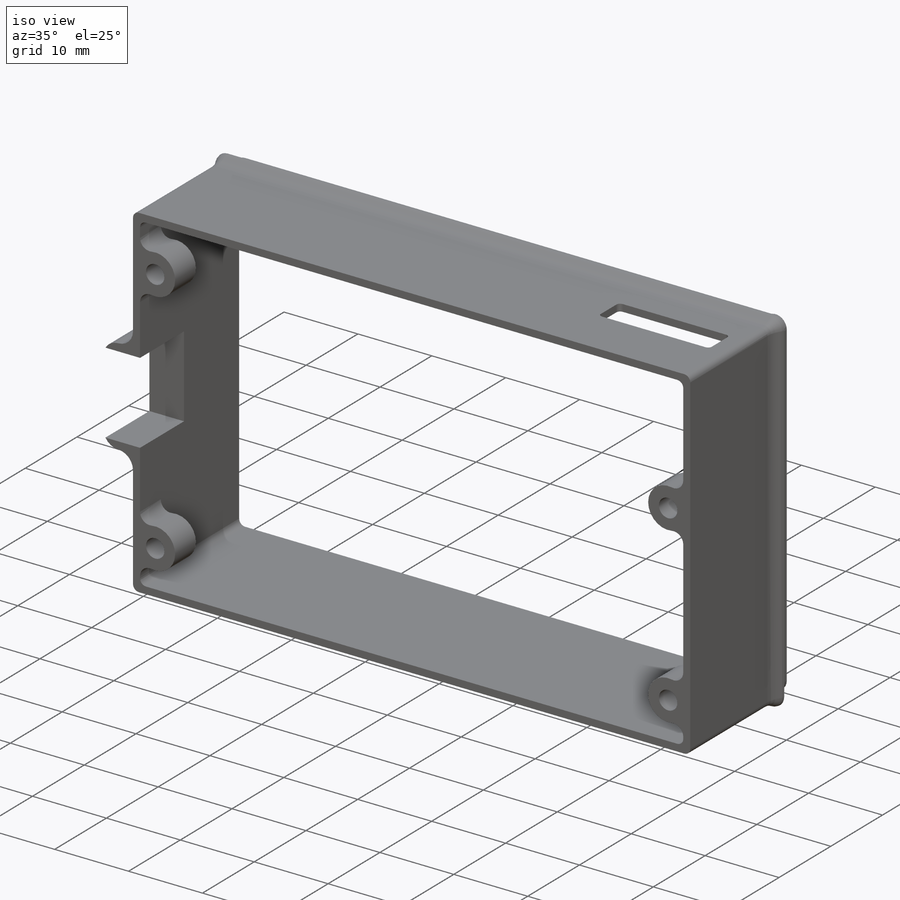
[diagram: iso view]
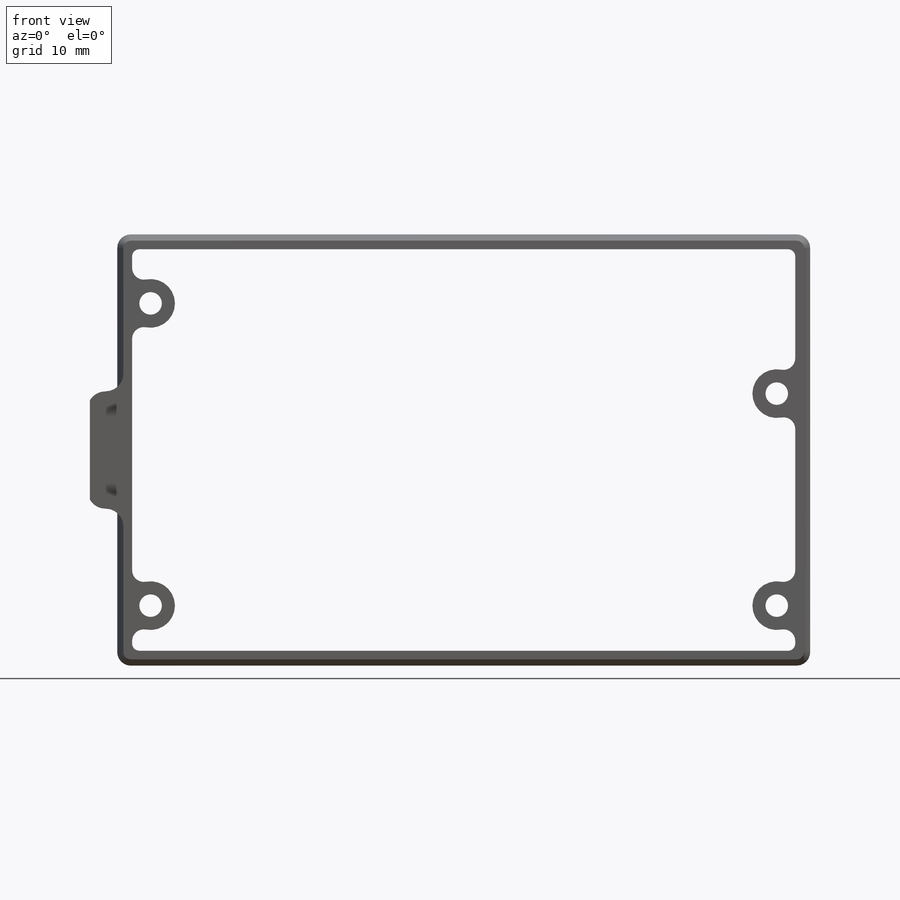
[diagram: front view]
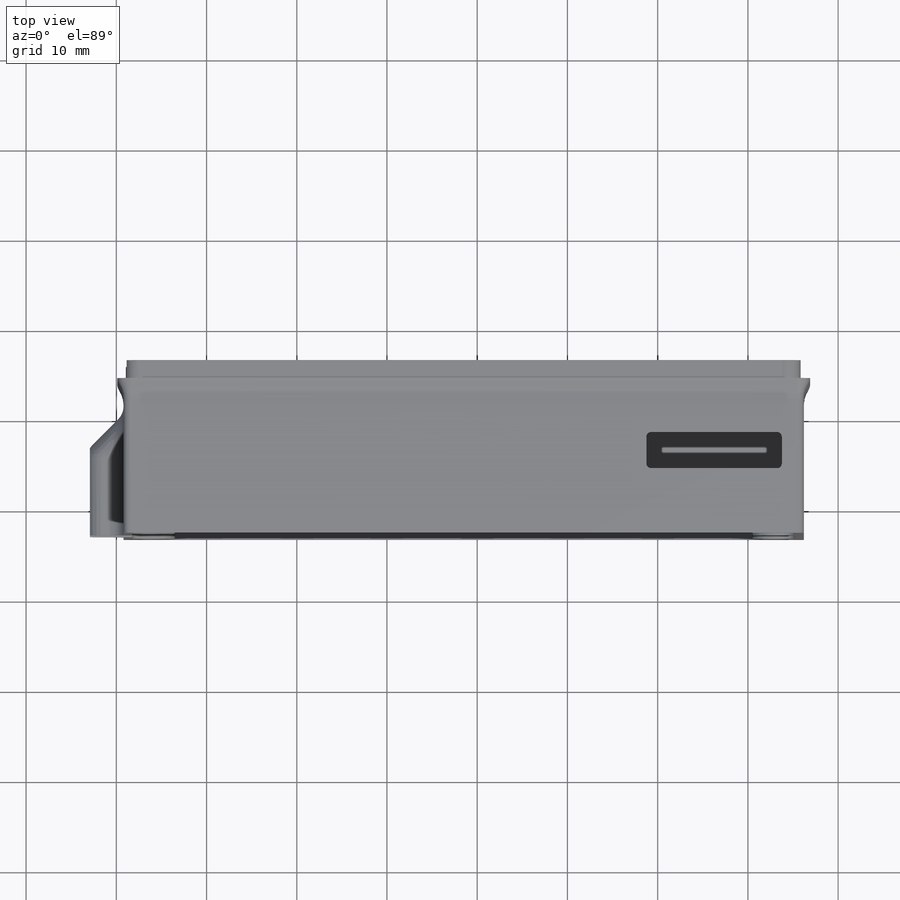
[diagram: top view]
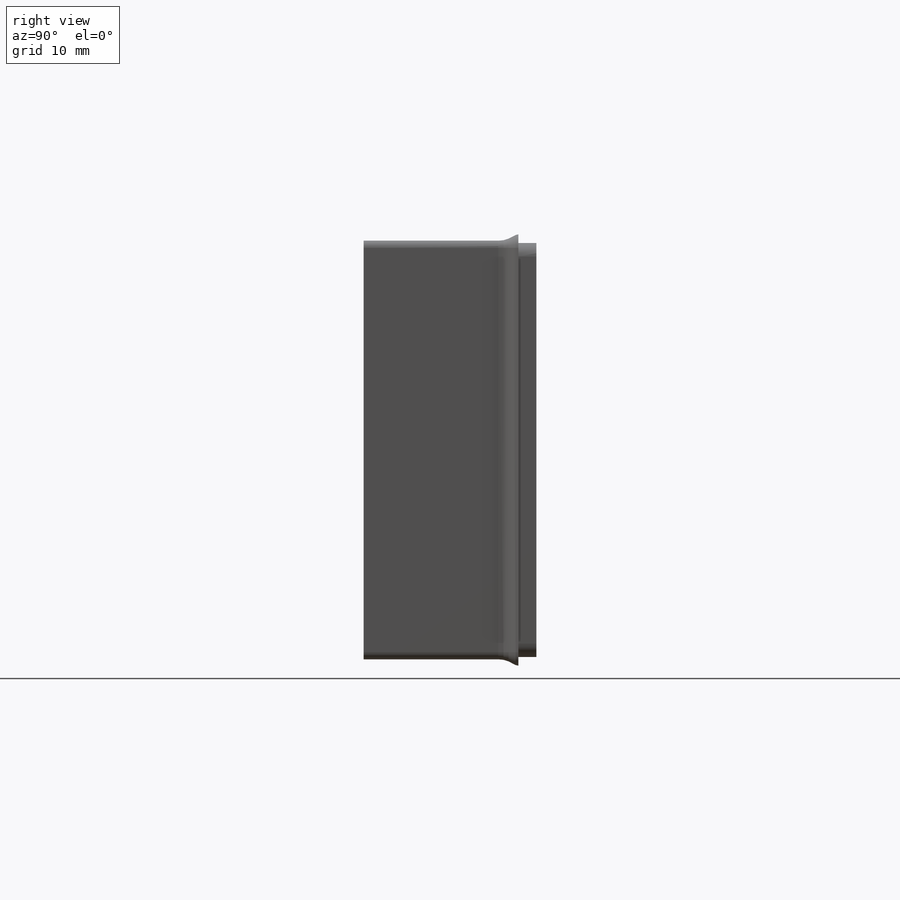
[diagram: right view]
SOLIDWORKS PART (.sldprt)
format: sldprt  version: not decoded by parser v0  size: 781,312 bytes
history: native  units: mm
features: sketch x17, fillet x9, cut_extrude x8, extrude x7, plane x3, chamfer x2, material x1 (+8 scaffold rows collapsed)
feature tree (55):
  scaffold x8  (default folders/planes/origin — collapsed)
  material  "Matériau <non spécifié>"
  plane  "Plan de face"
  plane  "Plan de dessus"
  plane  "Plan de droite"
  sketch  "Esquisse1"  dims[c1.D5=~3.854075mm c1.D7=~5.408132mm c1.D8=3.0mm c1.D1=42.5mm c1.D2=54.5mm c1.D3=45.0mm c1.D4=22.5mm c2.D5=1.0mm c2.D6=16.0mm c2.D7=17.0mm c2.D9=32.5mm c2.D10=1.0mm c2.D11=10.0mm c2.D12=~8.915009mm c2.D13=0.0mm c2.D14=1.0mm c2.D15=1.0mm c2.D16=1.0mm c2.D17=1.0mm]
  sketch  "Esquisse3"  dims[D1=0.95mm D2=0.95mm D3=0.95mm D4=0.95mm]
  extrude  "Boss.-Extru.1"  Depth=0.9mm
  sketch  "Esquisse4"  dims[D1=5.4mm D2=5.4mm D3=5.4mm]
  extrude  "Boss.-Extru.2"  Depth=2mm
  sketch  "Esquisse5"  dims[D1=0.95mm]
  extrude  "Boss.-Extru.3"  Depth=22.25mm
  sketch  "Esquisse6"  dims[c1.D1=1.0mm c1.D3=3.0mm c1.D2=1.7mm c2.D3=1.9mm]
  cut_extrude  "Enlèv. mat.-Extru.1"  [1 undecoded]
  sketch  "Esquisse7"  dims[D1=9.0mm D2=12.0mm D3=4.0mm D4=15.0mm]
  cut_extrude  "Enlèv. mat.-Extru.2"  [1 undecoded]
  sketch  "Esquisse8"  dims[c1.D3=5.4mm c1.D4=5.4mm c1.D5=5.4mm c1.D6=5.4mm c1.D7=5.4mm c1.D8=5.4mm c1.D9=5.4mm c1.D10=5.4mm c2.D3=5.4mm c2.D4=5.4mm c2.D7=5.4mm c2.D8=5.4mm c2.D9=5.4mm c2.D1=5.0mm c2.D2=5.0mm c3.D7=3.0mm c3.D8=3.0mm c3.D9=3.0mm c3.D10=3.0mm c3.D3=3.0mm c3.D4=3.0mm c3.D5=50.0mm c4.D4=3.0mm c4.D7=15.0mm c4.D8=3.0mm c4.D9=3.0mm]
  extrude  "Boss.-Extru.4"  Depth=4mm
  sketch  "Esquisse9"  dims[D1=2.5mm D2=2.5mm]
  cut_extrude  "Enlèv. mat.-Extru.3"  Depth=4mm
  sketch  "Esquisse10"  dims[c1.D1=11.0mm c1.D2=8.5mm c1.D3=16.0mm c1.D4=4.0mm c1.D5=8.0mm c2.D3=16.0mm]
  sketch  "Esquisse11"  dims[D1=1.0mm D2=1.0mm D3=5.0mm D4=0.0mm D5=8.5mm]
  extrude  "Boss.-Extru.5"  Depth=4mm
  chamfer  "Chanfrein1"  Distance=4mm Angle=45deg
  fillet  "Congé9"  Radius=2mm
  sketch  "Esquisse12"  dims[D1=0.0mm D2=8.5mm]
  cut_extrude  "Enlèv. mat.-Extru.4"  [1 undecoded]
  fillet  "Congé15"  Radius=0.8mm
  fillet  "Congé17"  Radius=0.5mm
  fillet  "Congé18"  Radius=0.4mm
  fillet  "Congé19"  Radius=1.5mm
  sketch  "Esquisse13"  dims[c1.D2=3.0mm c1.D3=3.0mm c1.D4=3.0mm c1.D1=3.0mm c2.D4=10.0mm c2.D5=10.0mm]
  extrude  "Boss.-Extru.6"  Depth=2mm
  fillet  "Congé21"  Radius=0.8mm
  sketch  "Esquisse14"  dims[D1=4.0mm]
  cut_extrude  "Enlèv. mat.-Extru.5"  [1 undecoded]
  sketch  "Esquisse15"
  cut_extrude  "Enlèv. mat.-Extru.6"  [1 undecoded]
  sketch  "Esquisse16"  dims[D1=0.7mm]
  extrude  "Boss.-Extru.7"  Depth=3mm
  chamfer  "Chanfrein4"  Distance=0.7mm Angle=45deg
  fillet  "Congé25"  Radius=3mm
  sketch  "Esquisse17"  dims[D2=0.6mm D3=0.6mm D4=0.6mm D5=0.6mm D1=2.0mm]
  fillet  "Congé27"  Radius=1.3mm
  cut_extrude  "Enlèv. mat.-Extru.7"  Depth=2mm
  fillet  "Congé28"  Radius=1.3mm
  sketch  "Esquisse18"
  cut_extrude  "Enlèv. mat.-Extru.8"  [1 undecoded]
decode coverage: 35 of 43 modeling features carry decoded parameters
note: ~ marks probable driven/reference dimensions
note: 6 parameter values undecoded
summary: no parameter record found for 6 features
note: suppression state not decoded; provenance and decode notes live in map.json
